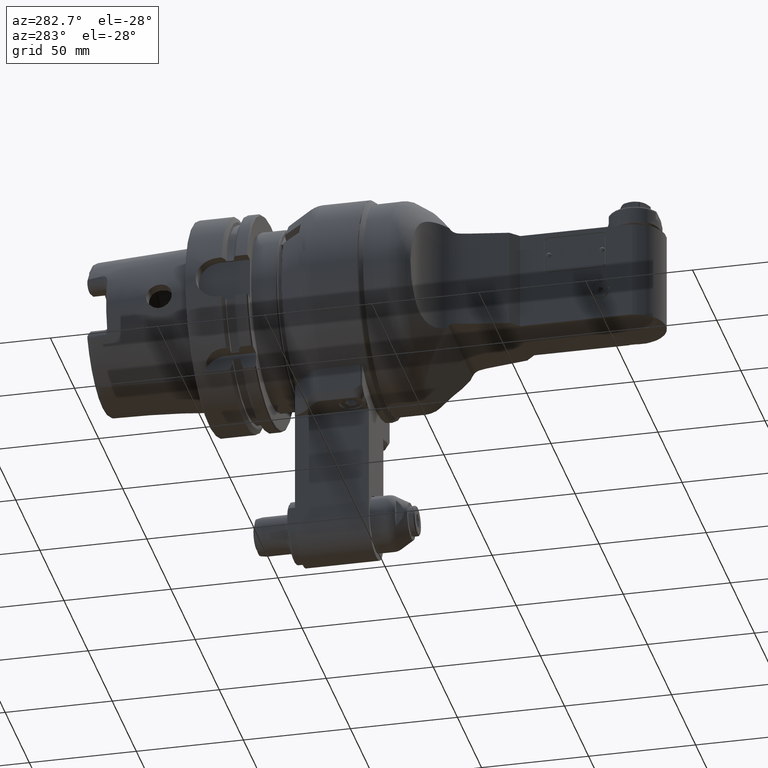
[diagram: clean part render]
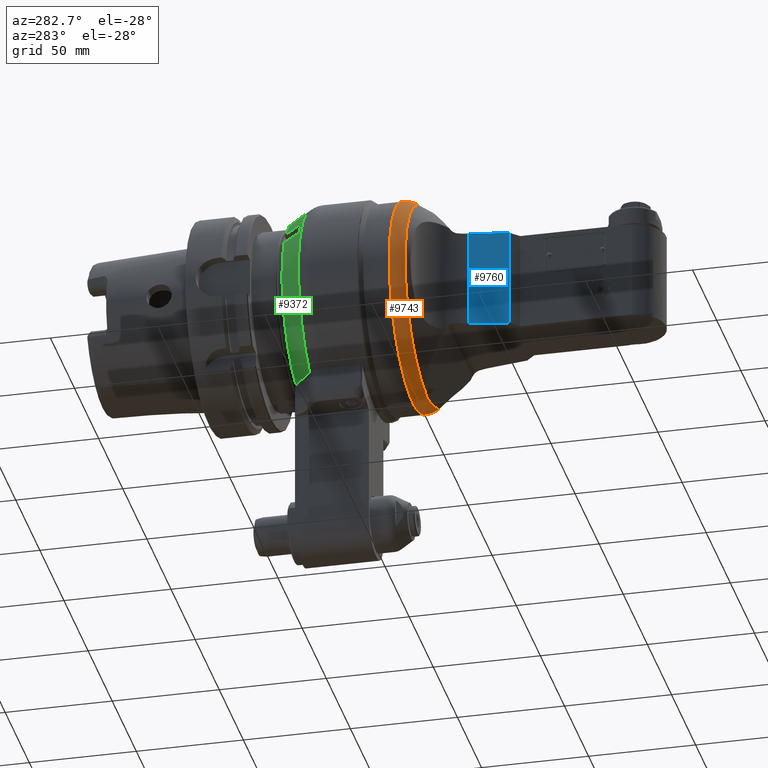
[diagram: same view with three faces highlighted in distinct colors, each labeled with its STEP entity id]
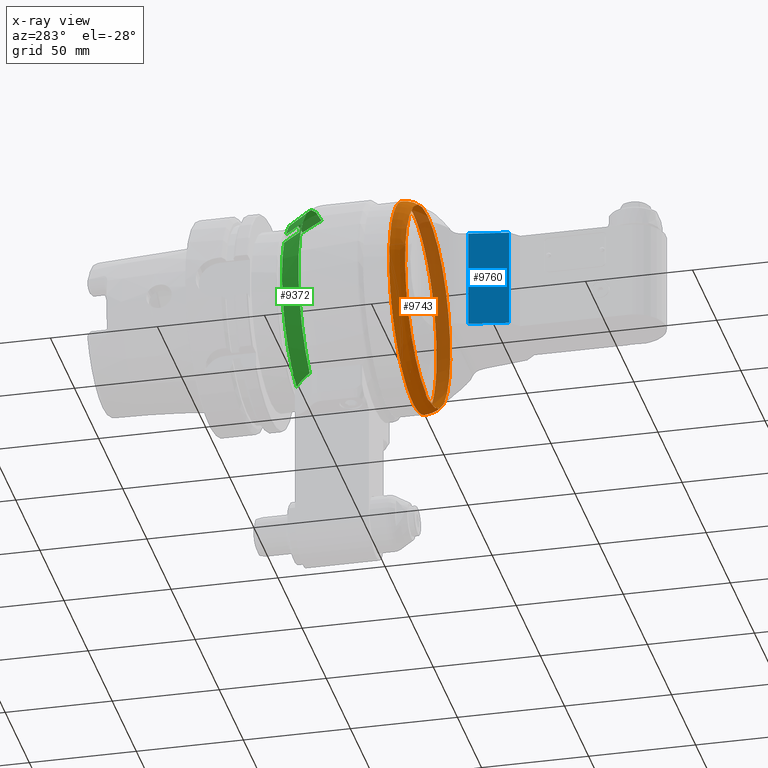
[diagram: x-ray of the same camera — body ghosted, the three highlighted faces saturated]
A machine part, auxiliary view with three faces highlighted in distinct colors.
The next image is the same camera in x-ray (body ghosted, the three faces saturated) — at least one of them is partly hidden behind the body in this view.
Their STEP definitions:

[orange] entity #9743 — the highlighted toroidal blend (fillet) surface has major radius 37 mm and minor (blend) radius 12 mm.
#180=B_SPLINE_CURVE_WITH_KNOTS('',3,(#19839,#19840,#19841,#19842,#19843,
#19844,#19845,#19846,#19847,#19848),.UNSPECIFIED.,.F.,.F.,(4,2,2,2,4),(-2.83909399646001,
-2.7495046846365,-2.43831440797141,-2.12712413130632,-2.03753481947803),
 .UNSPECIFIED.);
#261=TOROIDAL_SURFACE('',#10750,37.,12.);
#2370=FACE_OUTER_BOUND('',#2997,.T.);
#2997=EDGE_LOOP('',(#8171,#8172,#8173,#8174,#8175,#8176));
#3594=CIRCLE('',#10749,49.);
#3595=CIRCLE('',#10751,12.);
#3596=CIRCLE('',#10752,46.82982453147);
#3597=CIRCLE('',#10753,46.82982453147);
#4433=VERTEX_POINT('',#19831);
#4434=VERTEX_POINT('',#19834);
#4435=VERTEX_POINT('',#19836);
#4436=VERTEX_POINT('',#19838);
#5730=EDGE_CURVE('',#4433,#4433,#3594,.T.);
#5731=EDGE_CURVE('',#4433,#4434,#3595,.T.);
#5732=EDGE_CURVE('',#4434,#4435,#3596,.T.);
#5733=EDGE_CURVE('',#4436,#4435,#180,.F.);
#5734=EDGE_CURVE('',#4436,#4434,#3597,.T.);
#8171=ORIENTED_EDGE('',*,*,#5730,.F.);
#8172=ORIENTED_EDGE('',*,*,#5731,.T.);
#8173=ORIENTED_EDGE('',*,*,#5732,.T.);
#8174=ORIENTED_EDGE('',*,*,#5733,.F.);
#8175=ORIENTED_EDGE('',*,*,#5734,.T.);
#8176=ORIENTED_EDGE('',*,*,#5731,.F.);
#9743=ADVANCED_FACE('',(#2370),#261,.T.);
#10749=AXIS2_PLACEMENT_3D('',#19832,#13151,#13152);
#10750=AXIS2_PLACEMENT_3D('',#19833,#13153,#13154);
#10751=AXIS2_PLACEMENT_3D('',#19835,#13155,#13156);
#10752=AXIS2_PLACEMENT_3D('',#19837,#13157,#13158);
#10753=AXIS2_PLACEMENT_3D('',#19849,#13159,#13160);
#13151=DIRECTION('center_axis',(0.,1.,0.));
#13152=DIRECTION('ref_axis',(0.,0.,-1.));
#13153=DIRECTION('center_axis',(0.,1.,0.));
#13154=DIRECTION('ref_axis',(0.,0.,-1.));
#13155=DIRECTION('center_axis',(1.,0.,-1.22464679914735E-16));
#13156=DIRECTION('ref_axis',(1.22464679914735E-16,0.,1.));
#13157=DIRECTION('center_axis',(0.,1.,0.));
#13158=DIRECTION('ref_axis',(0.,0.,1.));
#13159=DIRECTION('center_axis',(0.,1.,0.));
#13160=DIRECTION('ref_axis',(0.,0.,1.));
#19831=CARTESIAN_POINT('',(-1.023824330266E-14,103.7835854665,49.));
#19832=CARTESIAN_POINT('Origin',(0.,103.7835854665,0.));
#19833=CARTESIAN_POINT('Origin',(0.,103.7835854665,0.));
#19834=CARTESIAN_POINT('',(5.73499947170969E-15,96.90066823034,46.82982453147));
#19835=CARTESIAN_POINT('Origin',(4.53119315684521E-15,103.7835854665,37.));
#19836=CARTESIAN_POINT('',(4.249092444111,96.90066823034,-46.63665595912));
#19837=CARTESIAN_POINT('Origin',(0.,96.90066823034,0.));
#19838=CARTESIAN_POINT('',(-4.249092444183,96.90066823034,-46.63665595911));
#19839=CARTESIAN_POINT('Ctrl Pts',(4.24909244413044,96.9006682303907,-46.6366559591925));
#19840=CARTESIAN_POINT('Ctrl Pts',(3.93289204005964,96.9404028538634,-46.6934028825036));
#19841=CARTESIAN_POINT('Ctrl Pts',(3.6125673028584,96.9755974134098,-46.743665922568));
#19842=CARTESIAN_POINT('Ctrl Pts',(2.17314967753025,97.1120317406329,-46.9385143350429));
#19843=CARTESIAN_POINT('Ctrl Pts',(1.03730092221697,97.1591954883699,-47.0058711473639));
#19844=CARTESIAN_POINT('Ctrl Pts',(-1.03730092221697,97.1591954883699,-47.0058711473639));
#19845=CARTESIAN_POINT('Ctrl Pts',(-2.17314967753025,97.1120317406329,-46.9385143350429));
#19846=CARTESIAN_POINT('Ctrl Pts',(-3.61256730287557,96.9755974134082,-46.7436659225657));
#19847=CARTESIAN_POINT('Ctrl Pts',(-3.93289204009383,96.9404028538597,-46.6934028824982));
#19848=CARTESIAN_POINT('Ctrl Pts',(-4.24909244418108,96.9006682303844,-46.6366559591834));
#19849=CARTESIAN_POINT('Origin',(0.,96.90066823034,0.));

[blue] entity #9760 — the highlighted planar face has unit normal (0.9848, 0.1736, 0).
#1004=LINE('',#19990,#1687);
#1016=LINE('',#20018,#1699);
#1037=LINE('',#20073,#1720);
#1038=LINE('',#20075,#1721);
#1687=VECTOR('',#13208,18.6166855458298);
#1699=VECTOR('',#13230,18.6166855458298);
#1720=VECTOR('',#13283,46.5);
#1721=VECTOR('',#13286,46.5);
#2387=FACE_OUTER_BOUND('',#3018,.T.);
#3018=EDGE_LOOP('',(#8295,#8296,#8297,#8298));
#4464=VERTEX_POINT('',#19987);
#4465=VERTEX_POINT('',#19989);
#4475=VERTEX_POINT('',#20015);
#4476=VERTEX_POINT('',#20017);
#5767=EDGE_CURVE('',#4464,#4465,#1004,.T.);
#5782=EDGE_CURVE('',#4475,#4476,#1016,.T.);
#5810=EDGE_CURVE('',#4476,#4464,#1037,.T.);
#5811=EDGE_CURVE('',#4465,#4475,#1038,.T.);
#8295=ORIENTED_EDGE('',*,*,#5767,.F.);
#8296=ORIENTED_EDGE('',*,*,#5810,.F.);
#8297=ORIENTED_EDGE('',*,*,#5782,.F.);
#8298=ORIENTED_EDGE('',*,*,#5811,.F.);
#9269=PLANE('',#10791);
#9760=ADVANCED_FACE('',(#2387),#9269,.F.);
#10791=AXIS2_PLACEMENT_3D('',#20074,#13284,#13285);
#13208=DIRECTION('',(-0.173648177666902,0.984807753012213,0.));
#13230=DIRECTION('',(0.173648177666902,-0.984807753012213,0.));
#13283=DIRECTION('',(0.,0.,-1.));
#13284=DIRECTION('center_axis',(0.984807753012213,0.173648177666902,0.));
#13285=DIRECTION('ref_axis',(0.173648177666902,-0.984807753012213,0.));
#13286=DIRECTION('',(0.,0.,1.));
#19987=CARTESIAN_POINT('',(-18.74327822335,54.62785161146,-23.));
#19989=CARTESIAN_POINT('',(-21.97603174258,72.96170787239,-23.));
#19990=CARTESIAN_POINT('',(-18.74327822335,54.62785161146,-23.));
#20015=CARTESIAN_POINT('',(-21.97603174258,72.96170787239,23.5));
#20017=CARTESIAN_POINT('',(-18.74327822335,54.62785161146,23.5));
#20018=CARTESIAN_POINT('',(-21.97603174258,72.96170787239,23.5));
#20073=CARTESIAN_POINT('',(-18.74327822335,54.62785161146,23.5));
#20074=CARTESIAN_POINT('Origin',(-22.74563619345,77.32635160292,-58.8000024));
#20075=CARTESIAN_POINT('',(-21.97603174258,72.96170787239,-23.));

[green] entity #9372 — the highlighted conical surface has half-angle 30 deg.
#54=B_SPLINE_CURVE_WITH_KNOTS('',3,(#14402,#14403,#14404,#14405,#14406,
#14407,#14408,#14409,#14410,#14411),.UNSPECIFIED.,.F.,.F.,(4,3,3,4),(0.,
0.3333333333333,0.6666666666667,0.999997693045581),.UNSPECIFIED.);
#55=B_SPLINE_CURVE_WITH_KNOTS('',3,(#14415,#14416,#14417,#14418,#14419,
#14420,#14421,#14422,#14423,#14424),.UNSPECIFIED.,.F.,.F.,(4,3,3,4),(7.52542509825655E-6,
0.3333333333333,0.6666666666667,1.),.UNSPECIFIED.);
#56=B_SPLINE_CURVE_WITH_KNOTS('',3,(#14428,#14429,#14430,#14431,#14432,
#14433,#14434,#14435,#14436,#14437),.UNSPECIFIED.,.F.,.F.,(4,3,3,4),(0.,
0.3333333333333,0.6666666666667,0.999992989007419),.UNSPECIFIED.);
#207=(
BOUNDED_CURVE()
B_SPLINE_CURVE(2,(#14377,#14378,#14379),.UNSPECIFIED.,.F.,.F.)
B_SPLINE_CURVE_WITH_KNOTS((3,3),(2.88449167266756,4.73034462630351),
 .UNSPECIFIED.)
CURVE()
GEOMETRIC_REPRESENTATION_ITEM()
RATIONAL_B_SPLINE_CURVE((1.03298555418538,1.03049774822796,1.0113182952694))
REPRESENTATION_ITEM('')
);
#1899=CONICAL_SURFACE('',#10015,46.84048999,0.523598775598299);
#1999=FACE_OUTER_BOUND('',#2578,.T.);
#2578=EDGE_LOOP('',(#6266,#6267,#6268,#6269,#6270,#6271,#6272,#6273));
#3236=CIRCLE('',#10010,49.39230484541);
#3240=CIRCLE('',#10016,44.28867513459);
#3241=CIRCLE('',#10017,48.90747728811);
#3242=CIRCLE('',#10018,44.28867513459);
#3822=VERTEX_POINT('',#14352);
#3823=VERTEX_POINT('',#14365);
#3824=VERTEX_POINT('',#14376);
#3831=VERTEX_POINT('',#14401);
#3832=VERTEX_POINT('',#14412);
#3833=VERTEX_POINT('',#14414);
#3834=VERTEX_POINT('',#14425);
#3835=VERTEX_POINT('',#14427);
#4777=EDGE_CURVE('',#3823,#3822,#3236,.T.);
#4778=EDGE_CURVE('',#3822,#3824,#207,.T.);
#4786=EDGE_CURVE('',#3823,#3831,#54,.T.);
#4787=EDGE_CURVE('',#3832,#3831,#3240,.T.);
#4788=EDGE_CURVE('',#3832,#3833,#55,.T.);
#4789=EDGE_CURVE('',#3834,#3833,#3241,.T.);
#4790=EDGE_CURVE('',#3834,#3835,#56,.T.);
#4791=EDGE_CURVE('',#3824,#3835,#3242,.T.);
#6266=ORIENTED_EDGE('',*,*,#4778,.F.);
#6267=ORIENTED_EDGE('',*,*,#4777,.F.);
#6268=ORIENTED_EDGE('',*,*,#4786,.T.);
#6269=ORIENTED_EDGE('',*,*,#4787,.F.);
#6270=ORIENTED_EDGE('',*,*,#4788,.T.);
#6271=ORIENTED_EDGE('',*,*,#4789,.F.);
#6272=ORIENTED_EDGE('',*,*,#4790,.T.);
#6273=ORIENTED_EDGE('',*,*,#4791,.F.);
#9372=ADVANCED_FACE('',(#1999),#1899,.T.);
#10010=AXIS2_PLACEMENT_3D('',#14374,#11238,#11239);
#10015=AXIS2_PLACEMENT_3D('',#14400,#11251,#11252);
#10016=AXIS2_PLACEMENT_3D('',#14413,#11253,#11254);
#10017=AXIS2_PLACEMENT_3D('',#14426,#11255,#11256);
#10018=AXIS2_PLACEMENT_3D('',#14438,#11257,#11258);
#11238=DIRECTION('center_axis',(0.,-1.,0.));
#11239=DIRECTION('ref_axis',(-0.0303691031364992,0.,0.999538752412674));
#11251=DIRECTION('center_axis',(0.,-1.,0.));
#11252=DIRECTION('ref_axis',(0.,0.,1.));
#11253=DIRECTION('center_axis',(0.,1.,0.));
#11254=DIRECTION('ref_axis',(-0.823803402997795,0.,0.566875606468697));
#11255=DIRECTION('center_axis',(0.,1.,0.));
#11256=DIRECTION('ref_axis',(-0.899586791598834,0.,0.436742034135616));
#11257=DIRECTION('center_axis',(0.,1.,0.));
#11258=DIRECTION('ref_axis',(-0.317304540867809,0.,-0.948323693864426));
#14352=CARTESIAN_POINT('',(-25.9923022715425,146.160254044869,-42.0000000019527));
#14365=CARTESIAN_POINT('',(-1.50000010664761,146.160266197764,49.3695157362067));
#14374=CARTESIAN_POINT('Origin',(0.,146.1602540378,0.));
#14376=CARTESIAN_POINT('',(-14.0529977330156,154.999999998573,-41.9999999995933));
#14377=CARTESIAN_POINT('Ctrl Pts',(-25.9923022695722,146.160254049553,-42.));
#14378=CARTESIAN_POINT('Ctrl Pts',(-19.6974303609293,151.89788989332,-42.));
#14379=CARTESIAN_POINT('Ctrl Pts',(-14.0529977333214,154.999999997721,-42.));
#14400=CARTESIAN_POINT('Origin',(0.,150.5801270189,0.));
#14401=CARTESIAN_POINT('',(-1.49999994161418,155.000000030769,44.2632663040557));
#14402=CARTESIAN_POINT('Ctrl Pts',(-1.5,146.1602783556,49.36950871544));
#14403=CARTESIAN_POINT('Ctrl Pts',(-1.5,147.1759979467,48.78281212368));
#14404=CARTESIAN_POINT('Ctrl Pts',(-1.5,148.18057303435,48.2025431401351));
#14405=CARTESIAN_POINT('Ctrl Pts',(-1.5,149.173898690625,47.6287619664027));
#14406=CARTESIAN_POINT('Ctrl Pts',(-1.5,150.1672243469,47.0549807926701));
#14407=CARTESIAN_POINT('Ctrl Pts',(-1.5,151.1493005718,46.4876874287499));
#14408=CARTESIAN_POINT('Ctrl Pts',(-1.5,152.1202955277,45.9267843059198));
#14409=CARTESIAN_POINT('Ctrl Pts',(-1.5,153.091283763477,45.3658850650237));
#14410=CARTESIAN_POINT('Ctrl Pts',(-1.5,154.051190883637,44.811375976766));
#14411=CARTESIAN_POINT('Ctrl Pts',(-1.5,155.00000003113,44.2632663046841));
#14412=CARTESIAN_POINT('',(-36.4851322129059,155.000057470123,25.1061533734176));
#14413=CARTESIAN_POINT('Origin',(0.,155.,0.));
#14414=CARTESIAN_POINT('',(-40.4965205788,147.,27.42212894174));
#14415=CARTESIAN_POINT('Ctrl Pts',(-36.4851325523608,155.000057527834,25.1061529848522));
#14416=CARTESIAN_POINT('Ctrl Pts',(-36.9099158662369,154.153147934446,25.3514017454659));
#14417=CARTESIAN_POINT('Ctrl Pts',(-37.3415881976503,153.292415073511,25.6006278822091));
#14418=CARTESIAN_POINT('Ctrl Pts',(-37.7801881247375,152.417782596384,25.8538536681795));
#14419=CARTESIAN_POINT('Ctrl Pts',(-38.2187979540011,151.543130372867,26.107085171174));
#14420=CARTESIAN_POINT('Ctrl Pts',(-38.6643356917479,150.654577905533,26.3643165039963));
#14421=CARTESIAN_POINT('Ctrl Pts',(-39.1170320901425,149.751665222016,26.6256808914706));
#14422=CARTESIAN_POINT('Ctrl Pts',(-39.5697284885369,148.8487525385,26.8870452789448));
#14423=CARTESIAN_POINT('Ctrl Pts',(-40.0295835475793,147.9314796388,27.1525427210712));
#14424=CARTESIAN_POINT('Ctrl Pts',(-40.4965205787996,147.,27.4221289417408));
#14425=CARTESIAN_POINT('',(-43.9965205788,147.,21.35995111525));
#14426=CARTESIAN_POINT('Origin',(0.,147.,0.));
#14427=CARTESIAN_POINT('',(-39.9851346518315,155.000053582945,19.0439758254258));
#14428=CARTESIAN_POINT('Ctrl Pts',(-43.9965205787991,147.,21.3599511152515));
#14429=CARTESIAN_POINT('Ctrl Pts',(-43.5299271506586,147.9307941946,21.0905632739124));
#14430=CARTESIAN_POINT('Ctrl Pts',(-43.0703009429599,148.84761068265,20.825197959171));
#14431=CARTESIAN_POINT('Ctrl Pts',(-42.6177154412174,149.750302263575,20.5638975979086));
#14432=CARTESIAN_POINT('Ctrl Pts',(-42.1651299394747,150.6529938445,20.3025972366461));
#14433=CARTESIAN_POINT('Ctrl Pts',(-41.7195851436882,151.5415605183,20.0453618288627));
#14434=CARTESIAN_POINT('Ctrl Pts',(-41.280859733803,152.416443309575,19.7920635953651));
#14435=CARTESIAN_POINT('Ctrl Pts',(-40.8421435516196,153.29130769946,19.5387706894837));
#14436=CARTESIAN_POINT('Ctrl Pts',(-40.4102464684765,154.152488782439,19.2894147922688));
#14437=CARTESIAN_POINT('Ctrl Pts',(-39.9851344961602,155.000053636655,19.0439762806162));
#14438=CARTESIAN_POINT('Origin',(0.,155.,0.));